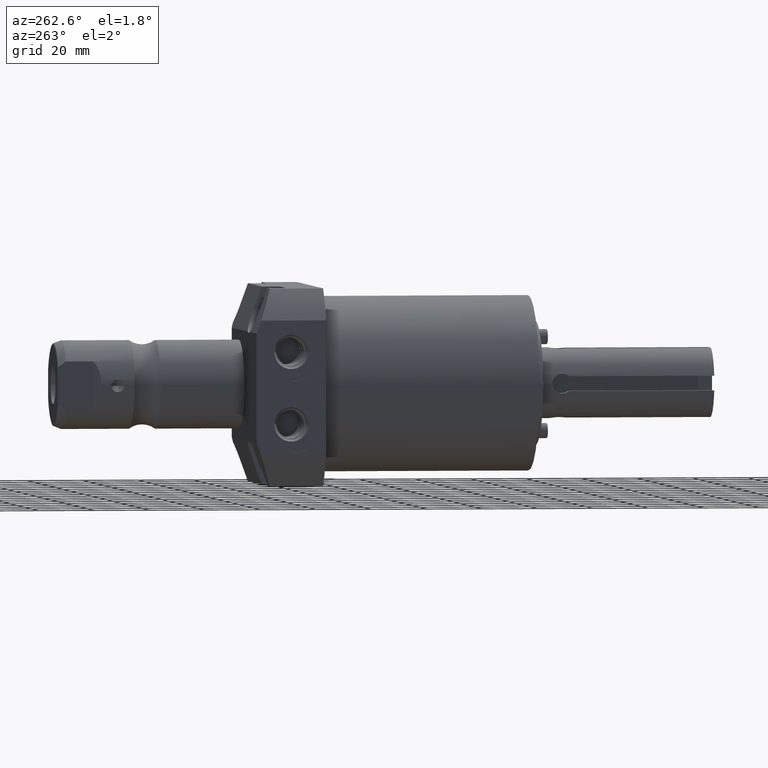
[diagram: clean part render]
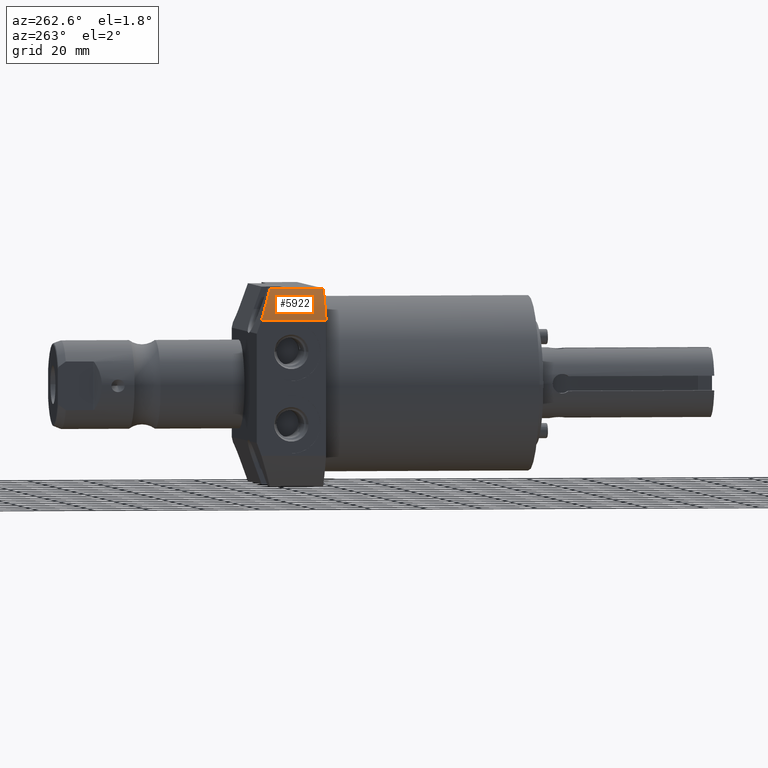
[diagram: same view with one face highlighted and labeled with its STEP entity id]
A machine part, auxiliary view. The second image highlights one B-rep face of the part: STEP entity #5922.
In plain terms, the highlighted cylindrical surface (partial cylindrical patch) has radius 50.8 mm, axis along (0, -1, 0).
Its self-contained STEP definition (entity closure, byte-faithful):
#1087=CARTESIAN_POINT('',(-2.13E-1,3.127E0,0.E0));
#1088=DIRECTION('',(0.E0,-1.E0,0.E0));
#1089=DIRECTION('',(-7.165847821437E-1,0.E0,6.975E-1));
#1090=AXIS2_PLACEMENT_3D('',#1087,#1088,#1089);
#1337=DIRECTION('',(0.E0,-1.E0,0.E0));
#1338=VECTOR('',#1337,9.181592179888E-1);
#1339=CARTESIAN_POINT('',(-1.971E0,4.045159217989E0,9.536435392745E-1));
#1340=LINE('',#1339,#1338);
#1773=CARTESIAN_POINT('',(-1.646169564287E0,3.884518603584E0,1.395E0));
#1774=CARTESIAN_POINT('',(-1.775819167153E0,3.932998359883E0,1.261802964266E0));
#1775=CARTESIAN_POINT('',(-1.883760543163E0,3.986624757339E0,1.114465648169E0));
#1776=CARTESIAN_POINT('',(-1.971E0,4.045159217989E0,9.536435392745E-1));
#1885=DIRECTION('',(0.E0,-1.E0,0.E0));
#1886=VECTOR('',#1885,7.575186035836E-1);
#1887=CARTESIAN_POINT('',(-1.646169564287E0,3.884518603584E0,1.395E0));
#1888=LINE('',#1887,#1886);
#4150=CARTESIAN_POINT('',(-1.971E0,3.127E0,9.536435392745E-1));
#4152=VERTEX_POINT('',#4150);
#4153=CARTESIAN_POINT('',(-1.646169564287E0,3.127E0,1.395E0));
#4155=VERTEX_POINT('',#4153);
#4201=CARTESIAN_POINT('',(-1.971E0,4.045159217989E0,9.536435392745E-1));
#4202=VERTEX_POINT('',#4201);
#4203=CARTESIAN_POINT('',(-1.646169564287E0,3.884518603584E0,1.395E0));
#4205=VERTEX_POINT('',#4203);
#5911=CARTESIAN_POINT('',(-2.13E-1,0.E0,0.E0));
#5912=DIRECTION('',(0.E0,-1.E0,0.E0));
#5913=DIRECTION('',(0.E0,0.E0,-1.E0));
#5914=AXIS2_PLACEMENT_3D('',#5911,#5912,#5913);
#5915=CYLINDRICAL_SURFACE('',#5914,2.E0);
#5916=ORIENTED_EDGE('',*,*,#5825,.F.);
#5917=ORIENTED_EDGE('',*,*,#5894,.T.);
#5918=ORIENTED_EDGE('',*,*,#5394,.T.);
#5919=ORIENTED_EDGE('',*,*,#5525,.F.);
#5920=EDGE_LOOP('',(#5916,#5917,#5918,#5919));
#5921=FACE_OUTER_BOUND('',#5920,.F.);
#1091=CIRCLE('',#1090,2.E0);
#1777=B_SPLINE_CURVE_WITH_KNOTS('',3,(#1773,#1774,#1775,#1776),.UNSPECIFIED.,
.F.,.F.,(4,4),(0.E0,1.E0),.UNSPECIFIED.);
#5394=EDGE_CURVE('',#4155,#4152,#1091,.T.);
#5525=EDGE_CURVE('',#4202,#4152,#1340,.T.);
#5825=EDGE_CURVE('',#4205,#4202,#1777,.T.);
#5894=EDGE_CURVE('',#4205,#4155,#1888,.T.);
#5922=ADVANCED_FACE('',(#5921),#5915,.T.);